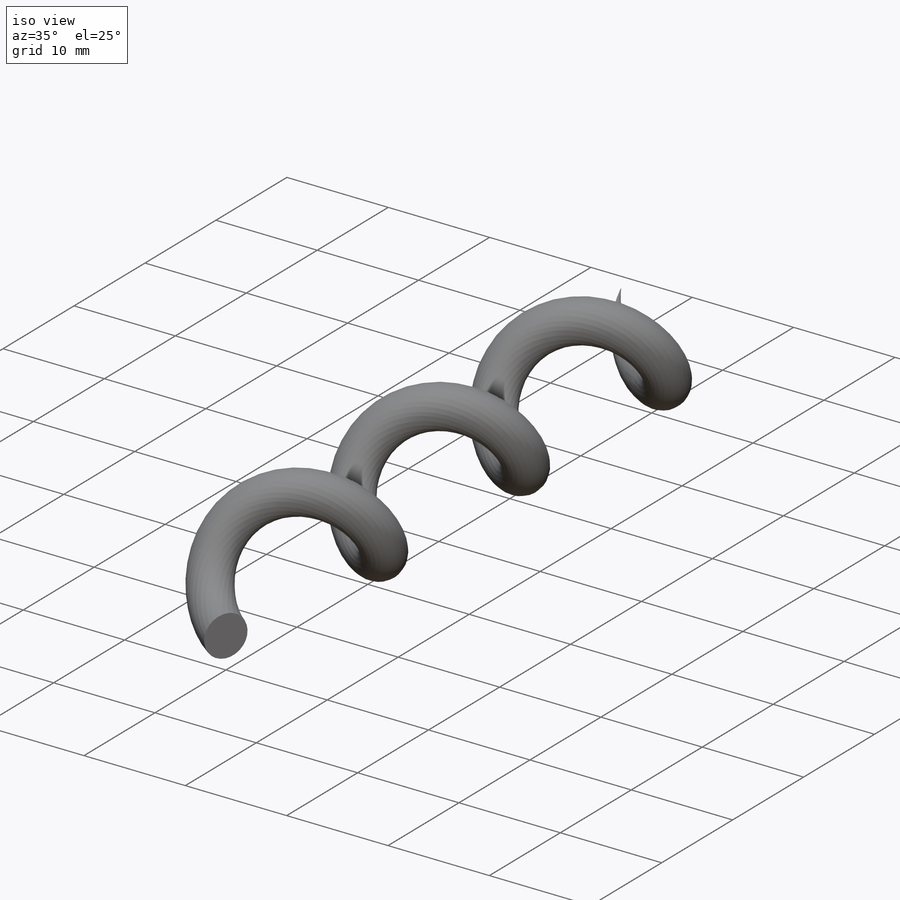
[diagram: iso view]
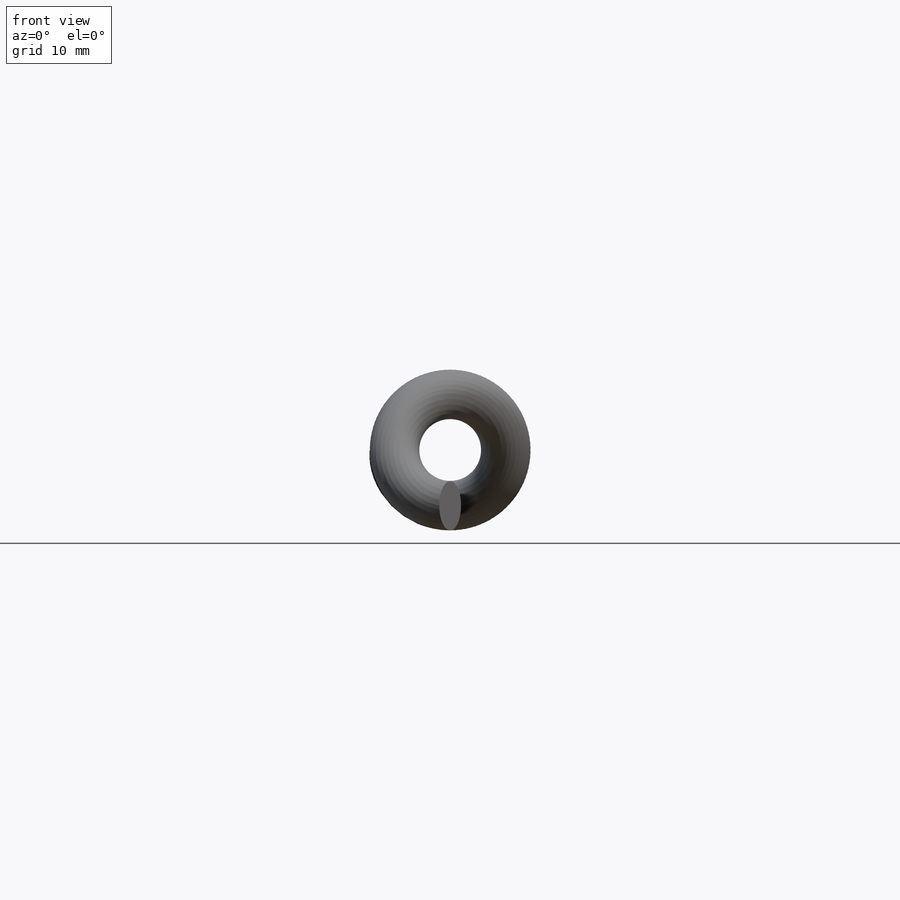
[diagram: front view]
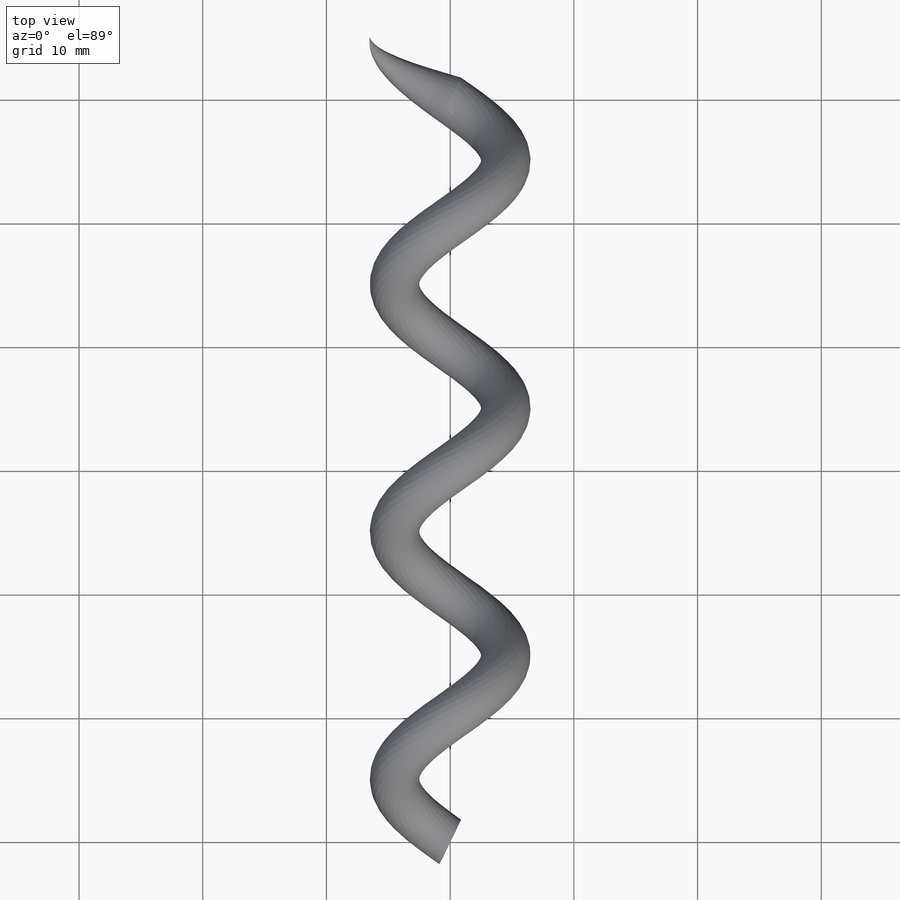
[diagram: top view]
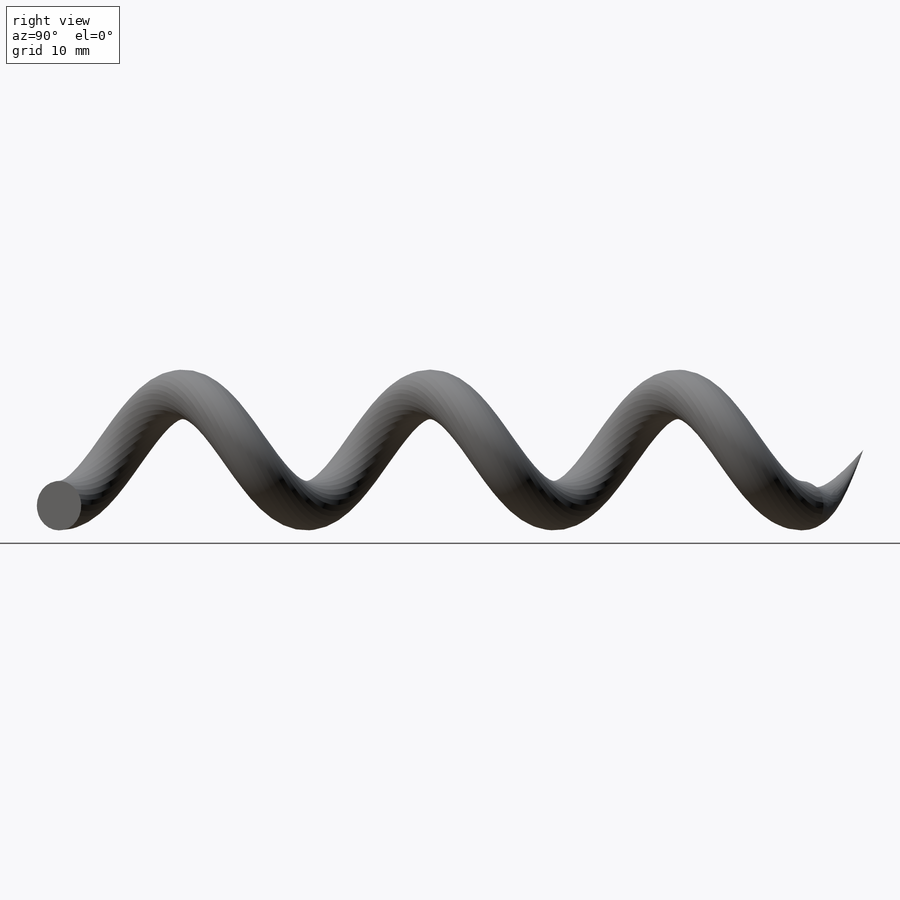
[diagram: right view]
SOLIDWORKS PART (.sldprt)
format: sldprt  version: not decoded by parser v0  size: 270,336 bytes
history: native  units: mm
features: sketch x7, plane x3, helix x2, material x1, sweep x1 (+11 scaffold rows collapsed)
feature tree (25):
  scaffold x11  (default folders/planes/origin — collapsed)
  material  "Material <not specified>"
  sketch  "Sketch1"  dims[D1=~44.515593mm]
  sketch  "Sketch2"  dims[D1=~68.06468mm]
  helix  "Helix/Spiral2"  Pitch=60mm
  plane  "Plane1"
  sketch  "Sketch3"  dims[D1=~3.423429mm]
  sweep  "Sweep1"
  sketch  "Sketch4"
  plane  "Plane2"
  sketch  "Sketch5"  dims[D1=~9.415767mm]
  helix  "Helix/Spiral3"  Pitch=5mm
  sketch  "3DSketch1"
  plane  "Plane3"  Offset=6.5mm
  sketch  "Sketch10"  dims[c1.D1=~8.918671mm c1.D2=~8.918671mm c2.D1=6.5mm c2.D2=84.0mm]
decode coverage: 7 of 10 modeling features carry decoded parameters
note: ~ marks probable driven/reference dimensions
note: suppression state not decoded; provenance and decode notes live in map.json
